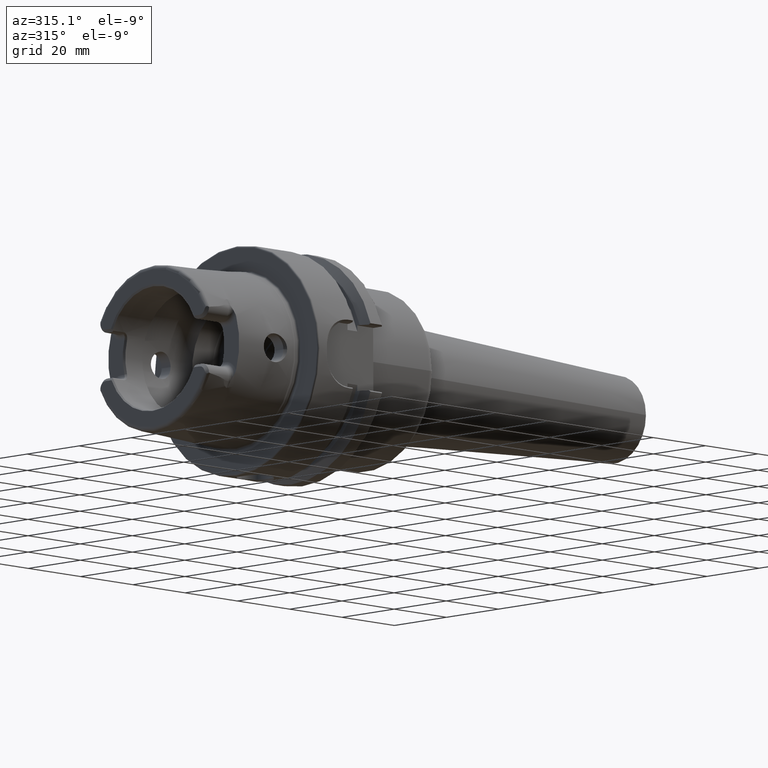
[diagram: clean part render]
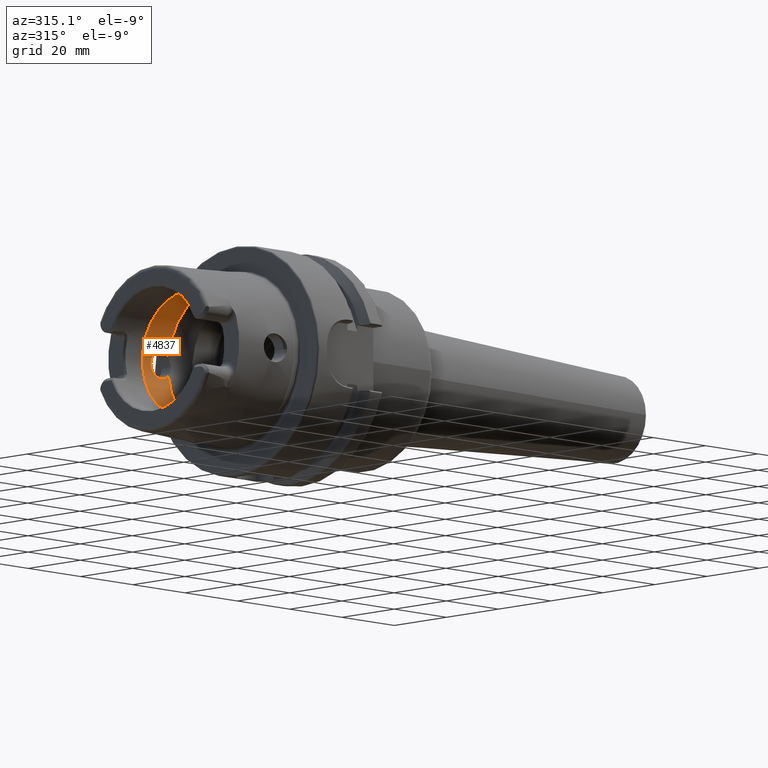
[diagram: same view with one face highlighted and labeled with its STEP entity id]
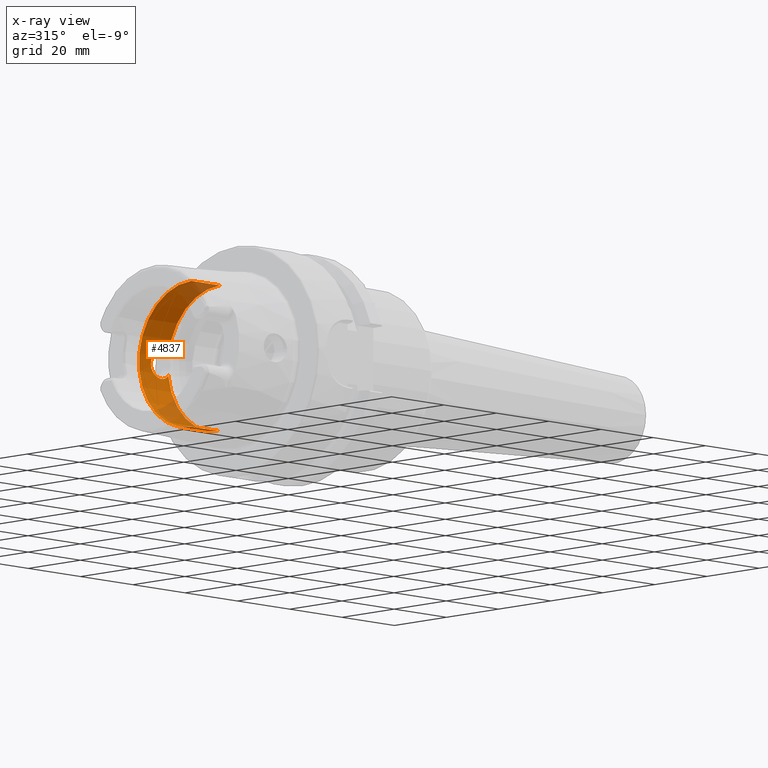
[diagram: x-ray of the same camera — body ghosted, the highlighted face saturated]
A machine part, auxiliary view. The second image highlights one B-rep face of the part: STEP entity #4837.
The next image is the same camera in x-ray: the body ghosted, the highlighted face saturated — about 22% of this face is hidden behind the body in this view.
In plain terms, the highlighted cylindrical surface (partial cylindrical patch) has radius 20 mm, axis along (1, 0, 0).
Its self-contained STEP definition (entity closure, byte-faithful):
#1672=CARTESIAN_POINT('',(-6.25E0,1.983683432405E1,-2.549509756796E0));
#1673=CARTESIAN_POINT('',(-6.412053249105E0,1.981436872154E1,
-2.724306669752E0));
#1674=CARTESIAN_POINT('',(-6.766283038869E0,1.976880152585E1,
-3.043174584824E0));
#1675=CARTESIAN_POINT('',(-7.437021749638E0,1.970321634602E1,
-3.437832059909E0));
#1676=CARTESIAN_POINT('',(-8.152676684205E0,1.965899391744E1,
-3.678552226110E0));
#1677=CARTESIAN_POINT('',(-8.900887994509E0,1.964074836162E1,
-3.773595275991E0));
#1678=CARTESIAN_POINT('',(-9.647982002938E0,1.965127008206E1,
-3.719177177138E0));
#1679=CARTESIAN_POINT('',(-1.038040066941E1,1.968954201551E1,
-3.513815501315E0));
#1680=CARTESIAN_POINT('',(-1.104729243051E1,1.974836703805E1,
-3.171513422847E0));
#1681=CARTESIAN_POINT('',(-1.163726074685E1,1.981912729168E1,
-2.701011039733E0));
#1682=CARTESIAN_POINT('',(-1.211813851842E1,1.988977616026E1,
-2.127402050047E0));
#1683=CARTESIAN_POINT('',(-1.247854943360E1,1.995021036686E1,
-1.467027006737E0));
#1684=CARTESIAN_POINT('',(-1.270027737553E1,1.999058859895E1,
-7.456987717207E-1));
#1685=CARTESIAN_POINT('',(-1.275E1,1.99999999E1,-2.521013685529E-1));
#1686=CARTESIAN_POINT('',(-1.275E1,1.99999999E1,0.E0));
#1688=CARTESIAN_POINT('',(-6.25E0,0.E0,0.E0));
#1689=DIRECTION('',(1.E0,0.E0,0.E0));
#1690=DIRECTION('',(0.E0,0.E0,-1.E0));
#1691=AXIS2_PLACEMENT_3D('',#1688,#1689,#1690);
#1693=CARTESIAN_POINT('',(-6.25E0,0.E0,0.E0));
#1694=DIRECTION('',(1.E0,0.E0,0.E0));
#1695=DIRECTION('',(0.E0,9.918417211620E-1,1.274754884772E-1));
#1696=AXIS2_PLACEMENT_3D('',#1693,#1694,#1695);
#1698=CARTESIAN_POINT('',(-1.275E1,1.99999999E1,0.E0));
#1699=CARTESIAN_POINT('',(-1.275E1,1.99999999E1,2.522499085260E-1));
#1700=CARTESIAN_POINT('',(-1.270021633428E1,1.999057683853E1,
7.460576467196E-1));
#1701=CARTESIAN_POINT('',(-1.247839689009E1,1.995018418162E1,1.467360516411E0));
#1702=CARTESIAN_POINT('',(-1.211800725292E1,1.988975364888E1,2.127612236E0));
#1703=CARTESIAN_POINT('',(-1.163703767481E1,1.981910322290E1,2.701157287313E0));
#1704=CARTESIAN_POINT('',(-1.104809586369E1,1.974845673600E1,3.170933053688E0));
#1705=CARTESIAN_POINT('',(-1.038170311499E1,1.968964959960E1,3.513217405331E0));
#1706=CARTESIAN_POINT('',(-9.650936081239E0,1.965137398590E1,3.718629939811E0));
#1707=CARTESIAN_POINT('',(-8.903475487327E0,1.964074202939E1,3.773631892091E0));
#1708=CARTESIAN_POINT('',(-8.157184233515E0,1.965882665966E1,3.679417749825E0));
#1709=CARTESIAN_POINT('',(-7.442004779313E0,1.970279837136E1,3.440215689278E0));
#1710=CARTESIAN_POINT('',(-6.767922365933E0,1.976858507722E1,3.044642999749E0));
#1711=CARTESIAN_POINT('',(-6.412615640680E0,1.981429075664E1,2.724913287093E0));
#1712=CARTESIAN_POINT('',(-6.25E0,1.983683432405E1,2.549509756796E0));
#1751=DIRECTION('',(-1.E0,0.E0,0.E0));
#1752=VECTOR('',#1751,1.101397465395E1);
#1753=CARTESIAN_POINT('',(-6.25E0,0.E0,1.99999999E1));
#1754=LINE('',#1753,#1752);
#1755=DIRECTION('',(-1.E0,0.E0,0.E0));
#1756=VECTOR('',#1755,1.101397465395E1);
#1757=CARTESIAN_POINT('',(-6.25E0,0.E0,-1.99999999E1));
#1758=LINE('',#1757,#1756);
#1803=CARTESIAN_POINT('',(-1.726397465395E1,0.E0,0.E0));
#1804=DIRECTION('',(1.E0,0.E0,0.E0));
#1805=DIRECTION('',(0.E0,0.E0,-1.E0));
#1806=AXIS2_PLACEMENT_3D('',#1803,#1804,#1805);
#2441=CARTESIAN_POINT('',(-1.726397465395E1,0.E0,-1.99999999E1));
#2442=CARTESIAN_POINT('',(-1.726397465395E1,0.E0,1.99999999E1));
#2443=VERTEX_POINT('',#2441);
#2444=VERTEX_POINT('',#2442);
#2453=CARTESIAN_POINT('',(-6.25E0,0.E0,-1.99999999E1));
#2454=VERTEX_POINT('',#2453);
#2455=CARTESIAN_POINT('',(-6.25E0,0.E0,1.99999999E1));
#2456=VERTEX_POINT('',#2455);
#2744=VERTEX_POINT('',#1672);
#2745=VERTEX_POINT('',#1686);
#2746=VERTEX_POINT('',#1712);
#4820=CARTESIAN_POINT('',(0.E0,0.E0,0.E0));
#4821=DIRECTION('',(1.E0,0.E0,0.E0));
#4822=DIRECTION('',(0.E0,0.E0,1.E0));
#4823=AXIS2_PLACEMENT_3D('',#4820,#4821,#4822);
#4824=CYLINDRICAL_SURFACE('',#4823,1.99999999E1);
#4825=ORIENTED_EDGE('',*,*,#4780,.F.);
#4826=ORIENTED_EDGE('',*,*,#4815,.F.);
#4828=ORIENTED_EDGE('',*,*,#4827,.T.);
#4830=ORIENTED_EDGE('',*,*,#4829,.T.);
#4832=ORIENTED_EDGE('',*,*,#4831,.F.);
#4833=ORIENTED_EDGE('',*,*,#4808,.F.);
#4834=ORIENTED_EDGE('',*,*,#4718,.F.);
#4835=EDGE_LOOP('',(#4825,#4826,#4828,#4830,#4832,#4833,#4834));
#4836=FACE_OUTER_BOUND('',#4835,.F.);
#4837=ADVANCED_FACE('',(#4836),#4824,.F.);
#1687=B_SPLINE_CURVE_WITH_KNOTS('',3,(#1672,#1673,#1674,#1675,#1676,#1677,#1678,
#1679,#1680,#1681,#1682,#1683,#1684,#1685,#1686),.UNSPECIFIED.,.F.,.F.,(4,1,1,1,
1,1,1,1,1,1,1,1,4),(0.E0,8.333333333333E-2,1.666666666667E-1,2.5E-1,
3.333333333333E-1,4.166666666667E-1,5.E-1,5.833333333333E-1,6.666666666667E-1,
7.5E-1,8.333333333333E-1,9.166666666667E-1,1.E0),.UNSPECIFIED.);
#1692=CIRCLE('',#1691,1.99999999E1);
#1697=CIRCLE('',#1696,1.99999999E1);
#1713=B_SPLINE_CURVE_WITH_KNOTS('',3,(#1698,#1699,#1700,#1701,#1702,#1703,#1704,
#1705,#1706,#1707,#1708,#1709,#1710,#1711,#1712),.UNSPECIFIED.,.F.,.F.,(4,1,1,1,
1,1,1,1,1,1,1,1,4),(0.E0,8.333333333333E-2,1.666666666667E-1,2.5E-1,
3.333333333333E-1,4.166666666667E-1,5.E-1,5.833333333333E-1,6.666666666667E-1,
7.5E-1,8.333333333333E-1,9.166666666667E-1,1.E0),.UNSPECIFIED.);
#1807=CIRCLE('',#1806,1.99999999E1);
#4718=EDGE_CURVE('',#2745,#2746,#1713,.T.);
#4780=EDGE_CURVE('',#2744,#2745,#1687,.T.);
#4808=EDGE_CURVE('',#2746,#2456,#1697,.T.);
#4815=EDGE_CURVE('',#2454,#2744,#1692,.T.);
#4827=EDGE_CURVE('',#2454,#2443,#1758,.T.);
#4829=EDGE_CURVE('',#2443,#2444,#1807,.T.);
#4831=EDGE_CURVE('',#2456,#2444,#1754,.T.);